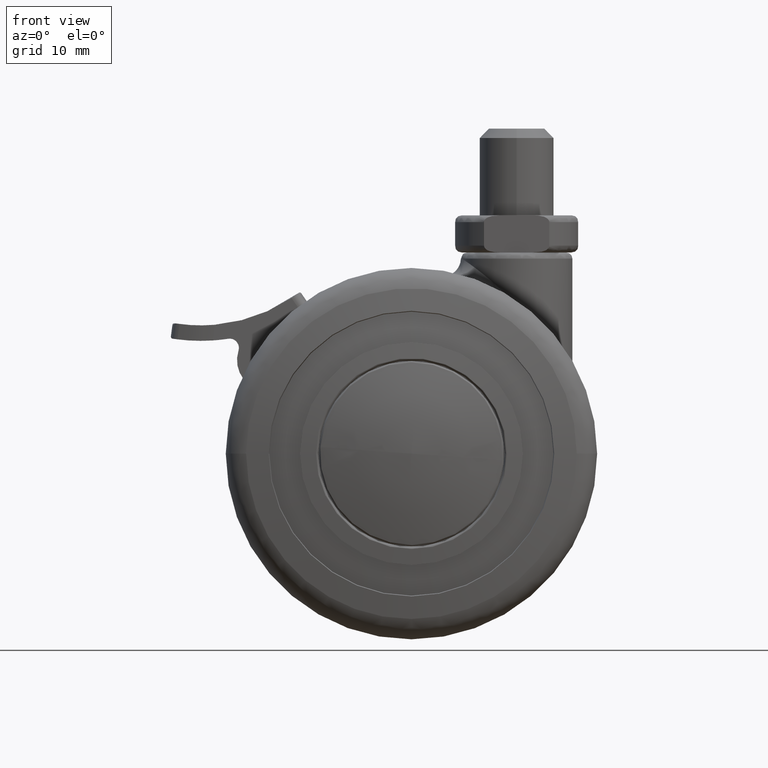
[diagram: clean part render]
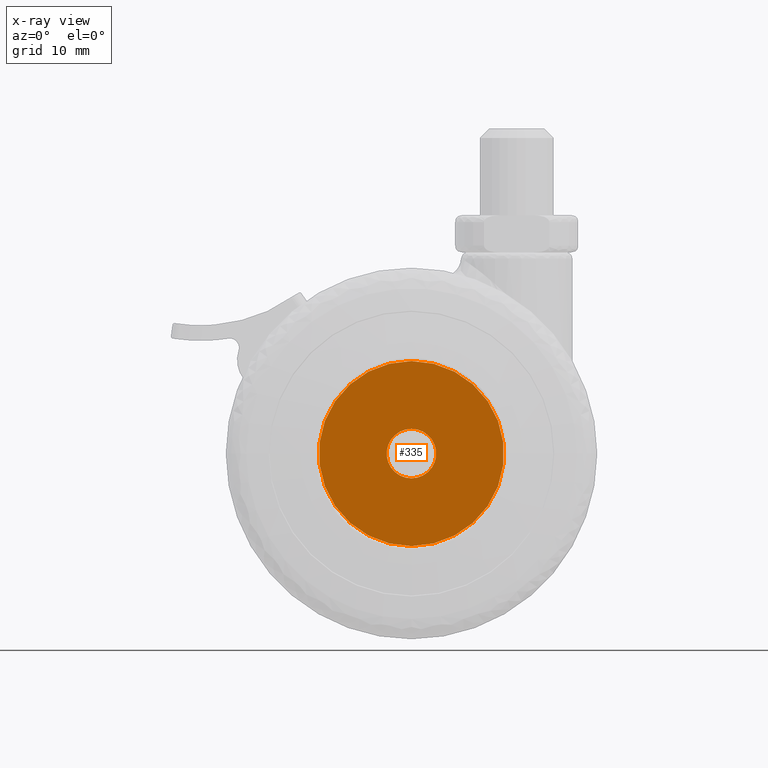
[diagram: x-ray — body ghosted, one internal face saturated and labeled with its STEP entity id]
A machine part, front view, then the same camera in x-ray: the body is ghosted and one INTERNAL B-rep face — a face not visible from any outside direction — is saturated and labeled: STEP entity #335.
In plain terms, the highlighted planar face has unit normal (0, 1, 0).
Its self-contained STEP definition (entity closure, byte-faithful):
#335=ADVANCED_FACE('',(#1833,#1834),#1832,.T.);
#1832=PLANE('',#5159);
#1833=FACE_OUTER_BOUND('',#5160,.T.);
#1834=FACE_BOUND('',#5161,.T.);
#5156=CARTESIAN_POINT('',(-3.10729914878E+01,-2.00000000000E+01,-1.94350000000E+01));
#5157=DIRECTION('',(0.00000000000E+00,1.00000000000E+00,0.00000000000E+00));
#5158=DIRECTION('',(0.00000000000E+00,-0.00000000000E+00,1.00000000000E+00));
#5159=AXIS2_PLACEMENT_3D('',#5156,#5157,#5158);
#5160=EDGE_LOOP('',(#6531,#6532));
#5161=EDGE_LOOP('',(#6533,#6534));
#6531=ORIENTED_EDGE('',*,*,#7324,.F.);
#6532=ORIENTED_EDGE('',*,*,#7325,.F.);
#6533=ORIENTED_EDGE('',*,*,#7326,.T.);
#6534=ORIENTED_EDGE('',*,*,#7327,.T.);
#7324=EDGE_CURVE('',#10095,#10096,#10097,.T.);
#7325=EDGE_CURVE('',#10096,#10095,#10103,.T.);
#7326=EDGE_CURVE('',#10109,#10110,#10111,.T.);
#7327=EDGE_CURVE('',#10110,#10109,#10117,.T.);
#10095=VERTEX_POINT('',#13463);
#10096=VERTEX_POINT('',#13464);
#10097=CIRCLE('',#13468,1.49500000000E+01);
#10103=CIRCLE('',#13472,1.49500000000E+01);
#10109=VERTEX_POINT('',#13473);
#10110=VERTEX_POINT('',#13474);
#10111=CIRCLE('',#13478,4.00000000000E+00);
#10117=CIRCLE('',#13482,4.00000000000E+00);
#13463=CARTESIAN_POINT('',(1.77635683940E-15,-2.00000000000E+01,1.49500000000E+01));
#13464=CARTESIAN_POINT('',(0.00000000000E+00,-2.00000000000E+01,-1.49500000000E+01));
#13465=CARTESIAN_POINT('',(0.00000000000E+00,-2.00000000000E+01,0.00000000000E+00));
#13466=DIRECTION('',(0.00000000000E+00,-1.00000000000E+00,-0.00000000000E+00));
#13467=DIRECTION('',(-1.22460635382E-16,0.00000000000E+00,-1.00000000000E+00));
#13468=AXIS2_PLACEMENT_3D('',#13465,#13466,#13467);
#13469=CARTESIAN_POINT('',(0.00000000000E+00,-2.00000000000E+01,0.00000000000E+00));
#13470=DIRECTION('',(0.00000000000E+00,-1.00000000000E+00,-0.00000000000E+00));
#13471=DIRECTION('',(-1.22460635382E-16,0.00000000000E+00,-1.00000000000E+00));
#13472=AXIS2_PLACEMENT_3D('',#13469,#13470,#13471);
#13473=CARTESIAN_POINT('',(0.00000000000E+00,-2.00000000000E+01,-4.00000000000E+00));
#13474=CARTESIAN_POINT('',(4.44089209850E-16,-2.00000000000E+01,4.00000000000E+00));
#13475=CARTESIAN_POINT('',(0.00000000000E+00,-2.00000000000E+01,0.00000000000E+00));
#13476=DIRECTION('',(0.00000000000E+00,-1.00000000000E+00,-0.00000000000E+00));
#13477=DIRECTION('',(-1.22460635382E-16,0.00000000000E+00,-1.00000000000E+00));
#13478=AXIS2_PLACEMENT_3D('',#13475,#13476,#13477);
#13479=CARTESIAN_POINT('',(0.00000000000E+00,-2.00000000000E+01,0.00000000000E+00));
#13480=DIRECTION('',(0.00000000000E+00,-1.00000000000E+00,-0.00000000000E+00));
#13481=DIRECTION('',(-1.22460635382E-16,0.00000000000E+00,-1.00000000000E+00));
#13482=AXIS2_PLACEMENT_3D('',#13479,#13480,#13481);